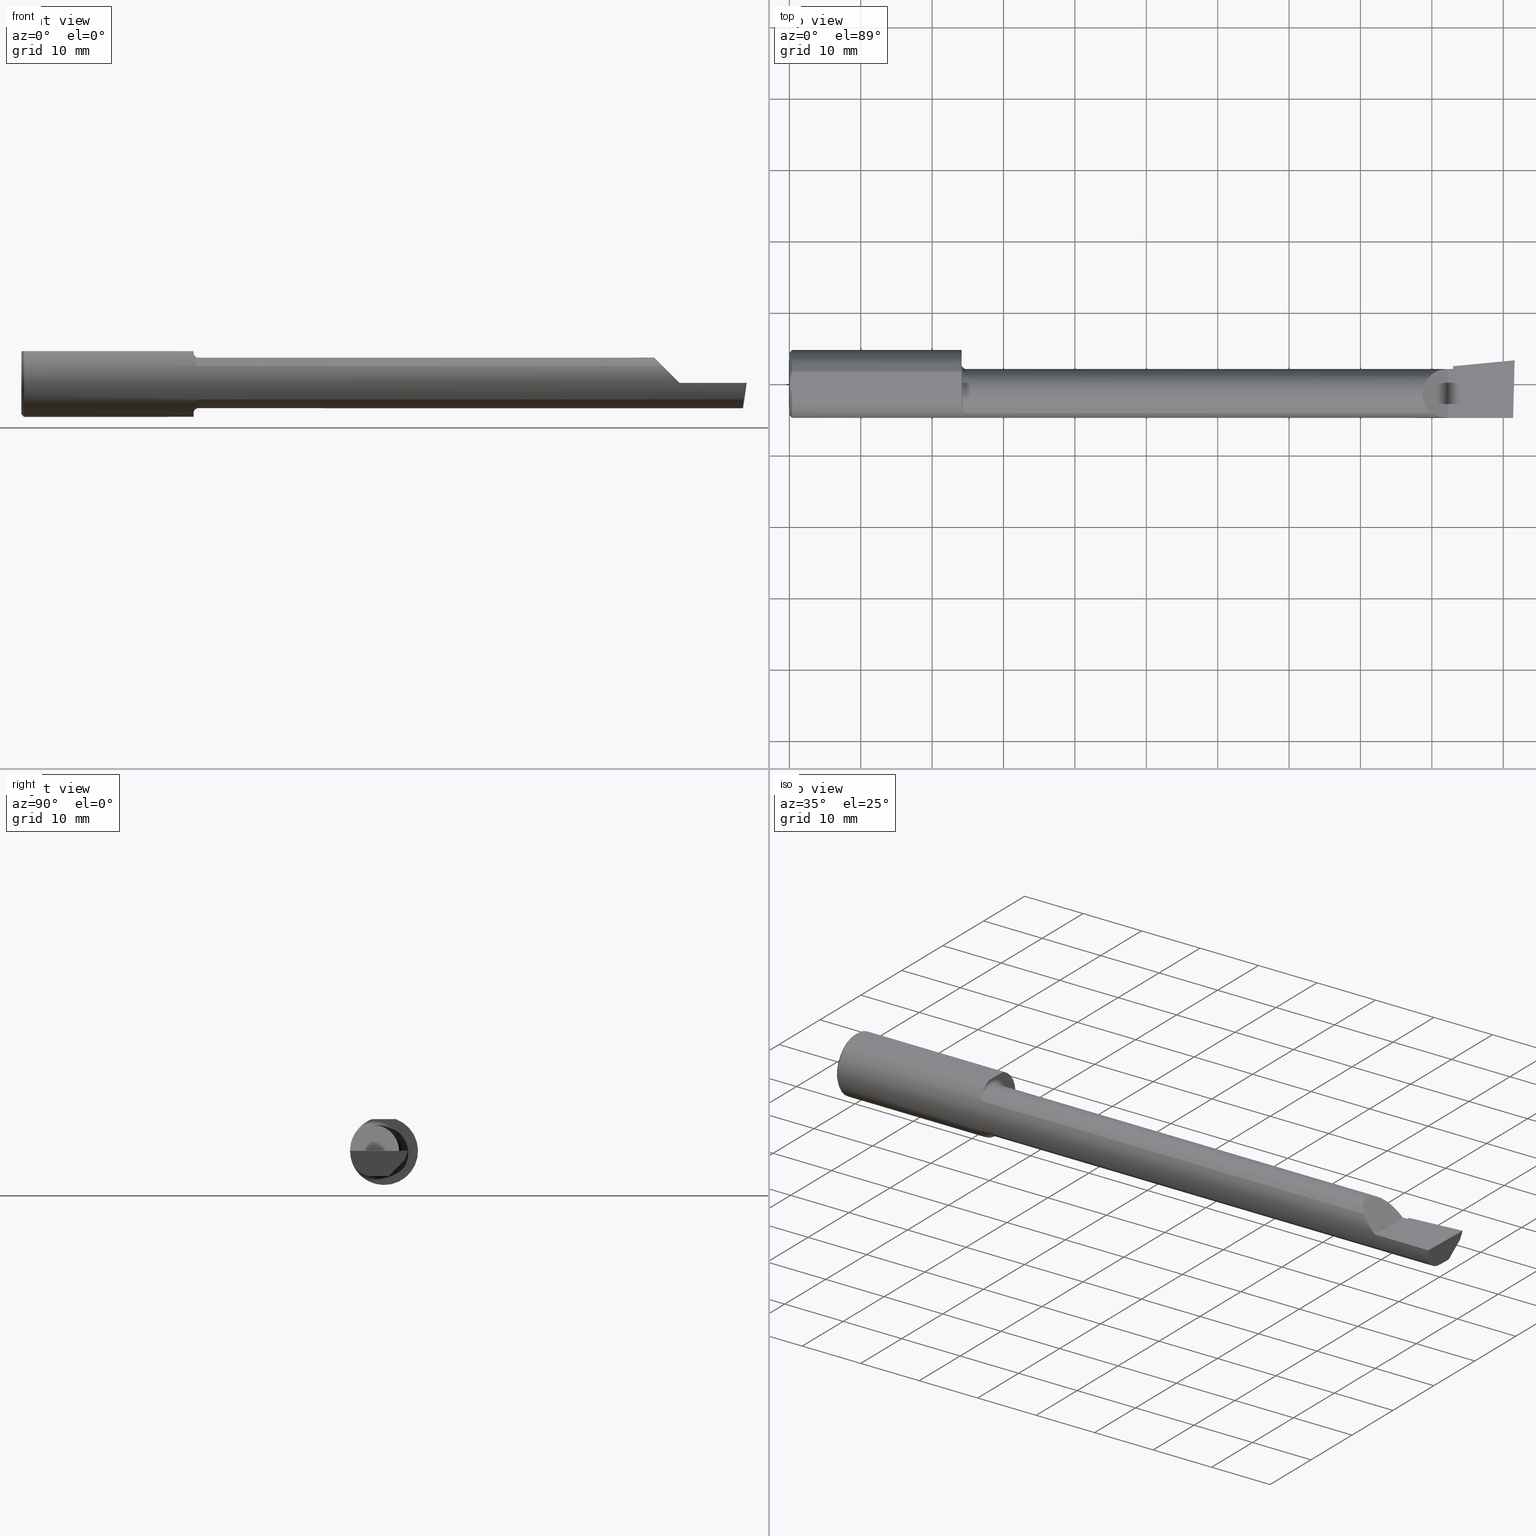
[diagram: canonical four-view strip — front | top / right | iso, engineering-drawing reading convention]
A machine part, canonical four-view strip (front | top / right | iso — engineering-drawing reading convention). The complete STEP part file that produces these views, byte-faithful:
ISO-10303-21;
HEADER;
FILE_DESCRIPTION (( 'STEP AP203' ),
    '1' );
FILE_NAME ('217504-B3203000.STEP',
    '2024-04-26T19:28:43',
    ( '' ),
    ( '' ),
    'SwSTEP 2.0',
    'SolidWorks 2022',
    '' );
FILE_SCHEMA (( 'CONFIG_CONTROL_DESIGN' ));
ENDSEC;

DATA;
#1 = ORIENTED_EDGE ( 'NONE', *, *, #617, .F. ) ;
#2 = B_SPLINE_CURVE_WITH_KNOTS ( 'NONE', 3,
 ( #511, #453, #55, #401, #458, #310 ),
 .UNSPECIFIED., .F., .F.,
 ( 4, 2, 4 ),
 ( 0.001779942938356815062, 0.002629978419973711019, 0.003480013901590607410 ),
 .UNSPECIFIED. ) ;
#3 = DIRECTION ( 'NONE',  ( -1.000000000000000000, -0.000000000000000000, -0.000000000000000000 ) ) ;
#4 = ADVANCED_FACE ( 'NONE', ( #122 ), #74, .T. ) ;
#5 = ORIENTED_EDGE ( 'NONE', *, *, #168, .F. ) ;
#6 = PRODUCT_DEFINITION_FORMATION_WITH_SPECIFIED_SOURCE ( 'ANY', '', #306, .NOT_KNOWN. ) ;
#7 = DIRECTION ( 'NONE',  ( 1.000000000000000000, 0.000000000000000000, 0.000000000000000000 ) ) ;
#8 = ORIENTED_EDGE ( 'NONE', *, *, #14, .T. ) ;
#9 = CARTESIAN_POINT ( 'NONE',  ( 3.981080296960509468, -0.1635956445993030639, -0.09130436773856169530 ) ) ;
#10 = ORIENTED_EDGE ( 'NONE', *, *, #34, .F. ) ;
#11 = PLANE ( 'NONE',  #428 ) ;
#12 = ORIENTED_EDGE ( 'NONE', *, *, #192, .T. ) ;
#13 = CARTESIAN_POINT ( 'NONE',  ( 3.597861799102314517, -0.1873500000000000165, 0.03213820089768516797 ) ) ;
#14 = EDGE_CURVE ( 'NONE', #373, #452, #393, .T. ) ;
#15 = CLOSED_SHELL ( 'NONE', ( #461, #501, #50, #24, #375, #60, #433, #207, #249, #4, #328, #286, #158, #94, #230, #419, #298 ) ) ;
#16 = DIRECTION ( 'NONE',  ( 0.06658005426110566449, -0.6914603011188223958, -0.7193398003386547446 ) ) ;
#17 = ORIENTED_EDGE ( 'NONE', *, *, #115, .F. ) ;
#18 = FACE_OUTER_BOUND ( 'NONE', #512, .T. ) ;
#19 = PERSON_AND_ORGANIZATION ( #285, #300 ) ;
#20 = VECTOR ( 'NONE', #203, 39.37007874015748143 ) ;
#21 = VERTEX_POINT ( 'NONE', #387 ) ;
#22 = LINE ( 'NONE', #565, #396 ) ;
#23 = CARTESIAN_POINT ( 'NONE',  ( 2.317499999999999893, -0.1635956445993030639, 0.09130436773856169530 ) ) ;
#24 = ADVANCED_FACE ( 'NONE', ( #90 ), #539, .F. ) ;
#25 = ORIENTED_EDGE ( 'NONE', *, *, #365, .F. ) ;
#26 = DIRECTION ( 'NONE',  ( -1.000000000000000000, -4.268512490100411279E-18, -0.000000000000000000 ) ) ;
#27 = AXIS2_PLACEMENT_3D ( 'NONE', #275, #475, #509 ) ;
#28 = CARTESIAN_POINT ( 'NONE',  ( 3.659999999999999698, -0.05739999999999999963, 0.000000000000000000 ) ) ;
#29 = CC_DESIGN_DATE_AND_TIME_ASSIGNMENT ( #35, #516, ( #302 ) ) ;
#30 = LINE ( 'NONE', #593, #166 ) ;
#31 = MECHANICAL_CONTEXT ( 'NONE', #73, 'mechanical' ) ;
#32 = DIRECTION ( 'NONE',  ( 0.000000000000000000, 1.000000000000000000, -1.438723400918613551E-16 ) ) ;
#33 = CARTESIAN_POINT ( 'NONE',  ( 3.656476415630202759, 0.01361451005324055587, -0.1207110541441177021 ) ) ;
#34 = EDGE_CURVE ( 'NONE', #452, #349, #482, .T. ) ;
#35 = DATE_AND_TIME ( #329, #600 ) ;
#36 = CARTESIAN_POINT ( 'NONE',  ( 0.9637641080978833763, -0.1573043405450777754, 0.1018329020719625500 ) ) ;
#37 = APPROVAL_PERSON_ORGANIZATION ( #380, #151, #383 ) ;
#38 = CARTESIAN_POINT ( 'NONE',  ( 4.000000000000000000, 0.2373500000000000332, 0.1753499999999999504 ) ) ;
#39 = PLANE ( 'NONE',  #605 ) ;
#40 = CARTESIAN_POINT ( 'NONE',  ( 3.659999999999999698, 0.08265000000000022329, 1.790477306702067193E-16 ) ) ;
#41 = CARTESIAN_POINT ( 'NONE',  ( 3.656639924654159657, 0.06539171466162838064, -0.06735725908305589815 ) ) ;
#42 = ORIENTED_EDGE ( 'NONE', *, *, #489, .F. ) ;
#43 = VECTOR ( 'NONE', #121, 39.37007874015748143 ) ;
#44 = CARTESIAN_POINT ( 'NONE',  ( 3.659999999999999698, 0.1149890494305081945, -0.01656765604781319789 ) ) ;
#45 = EDGE_CURVE ( 'NONE', #603, #405, #291, .T. ) ;
#46 = VERTEX_POINT ( 'NONE', #243 ) ;
#47 = ORIENTED_EDGE ( 'NONE', *, *, #449, .F. ) ;
#48 = AXIS2_PLACEMENT_3D ( 'NONE', #608, #259, #208 ) ;
#49 = VERTEX_POINT ( 'NONE', #40 ) ;
#50 = ADVANCED_FACE ( 'NONE', ( #288 ), #231, .T. ) ;
#51 = VERTEX_POINT ( 'NONE', #628 ) ;
#52 = CARTESIAN_POINT ( 'NONE',  ( 2.317499999999999893, -0.1635956445993030639, -0.09130436773856169530 ) ) ;
#53 = ORIENTED_EDGE ( 'NONE', *, *, #85, .F. ) ;
#54 = AXIS2_PLACEMENT_3D ( 'NONE', #631, #336, #234 ) ;
#55 = CARTESIAN_POINT ( 'NONE',  ( 0.008227791779583789808, -0.04447712204611815878, 0.1753499999999999781 ) ) ;
#56 = DESIGN_CONTEXT ( 'detailed design', #109, 'design' ) ;
#57 = EDGE_LOOP ( 'NONE', ( #256, #152, #125, #377 ) ) ;
#58 = DIRECTION ( 'NONE',  ( 4.268512490100411279E-18, -1.000000000000000000, 0.000000000000000000 ) ) ;
#59 = EDGE_LOOP ( 'NONE', ( #523, #251 ) ) ;
#60 = ADVANCED_FACE ( 'NONE', ( #195 ), #190, .F. ) ;
#61 = DIRECTION ( 'NONE',  ( 0.1219104985251946854, 0.000000000000000000, 0.9925410975618785825 ) ) ;
#62 =( BOUNDED_CURVE ( )  B_SPLINE_CURVE ( 3, ( #9, #205, #163, #107 ),
 .UNSPECIFIED., .F., .T. ) 
 B_SPLINE_CURVE_WITH_KNOTS ( ( 4, 4 ),
 ( 0.8516985021657665911, 1.360746882515200262 ),
 .UNSPECIFIED. ) 
 CURVE ( )  GEOMETRIC_REPRESENTATION_ITEM ( )  RATIONAL_B_SPLINE_CURVE ( ( 1.000000000000000000, 0.9785221379938657815, 0.9785221379938657815, 1.000000000000000000 ) ) 
 REPRESENTATION_ITEM ( '' )  );
#63 = LINE ( 'NONE', #465, #594 ) ;
#64 = VERTEX_POINT ( 'NONE', #441 ) ;
#65 = DIRECTION ( 'NONE',  ( 0.000000000000000000, 1.000000000000000000, 0.000000000000000000 ) ) ;
#66 = DIRECTION ( 'NONE',  ( 1.000000000000000000, 4.268512490100411279E-18, 0.000000000000000000 ) ) ;
#67 = ORIENTED_EDGE ( 'NONE', *, *, #586, .F. ) ;
#68 = CARTESIAN_POINT ( 'NONE',  ( 3.648099498941298702, 0.08140859995291799267, -0.05000000000000002359 ) ) ;
#69 = EDGE_CURVE ( 'NONE', #437, #472, #213, .T. ) ;
#70 = PERSON_AND_ORGANIZATION ( #285, #300 ) ;
#71 = EDGE_LOOP ( 'NONE', ( #352, #507, #169, #618, #53, #42 ) ) ;
#72 = FACE_OUTER_BOUND ( 'NONE', #389, .T. ) ;
#73 = APPLICATION_CONTEXT ( 'configuration controlled 3d designs of mechanical parts and assemblies' ) ;
#74 = PLANE ( 'NONE',  #27 ) ;
#75 = CARTESIAN_POINT ( 'NONE',  ( 0.000000000000000000, -0.05740000000000001351, 0.000000000000000000 ) ) ;
#76 = LENGTH_MEASURE_WITH_UNIT ( LENGTH_MEASURE( 0.02539999999999999897 ), #474 );
#77 = DIRECTION ( 'NONE',  ( -0.7071067811865507924, 0.000000000000000000, 0.7071067811865443531 ) ) ;
#78 = CARTESIAN_POINT ( 'NONE',  ( 4.000000000000000000, -0.2500000000000000555, -1.707404996040164512E-16 ) ) ;
#79 = AXIS2_PLACEMENT_3D ( 'NONE', #344, #131, #528 ) ;
#80 = VERTEX_POINT ( 'NONE', #343 ) ;
#81 = DATE_AND_TIME ( #530, #400 ) ;
#82 = CARTESIAN_POINT ( 'NONE',  ( 3.977925907309857845, -0.1365595166907235813, -0.1227499502647107499 ) ) ;
#83 = VECTOR ( 'NONE', #3, 39.37007874015748143 ) ;
#84 = CARTESIAN_POINT ( 'NONE',  ( 3.659999999999999698, -0.004807985797372722400, -0.1400500000000000633 ) ) ;
#85 = EDGE_CURVE ( 'NONE', #51, #521, #332, .T. ) ;
#86 = CARTESIAN_POINT ( 'NONE',  ( 3.629999999999999893, -0.1873499999999999888, -1.383850883036508279E-16 ) ) ;
#87 = FACE_OUTER_BOUND ( 'NONE', #504, .T. ) ;
#88 = DATE_TIME_ROLE ( 'classification_date' ) ;
#89 = LOCAL_TIME ( 12, 28, 43.00000000000000000, #93 ) ;
#90 = FACE_OUTER_BOUND ( 'NONE', #399, .T. ) ;
#91 = VECTOR ( 'NONE', #294, 39.37007874015748854 ) ;
#92 = DIRECTION ( 'NONE',  ( -1.000000000000000000, -0.000000000000000000, -0.000000000000000000 ) ) ;
#93 = COORDINATED_UNIVERSAL_TIME_OFFSET ( 8, 0, .BEHIND. ) ;
#94 = ADVANCED_FACE ( 'NONE', ( #527 ), #391, .F. ) ;
#95 = CARTESIAN_POINT ( 'NONE',  ( 0.008244775919947424855, 0.04453482769755855164, 0.1753499999999999504 ) ) ;
#96 = LINE ( 'NONE', #432, #191 ) ;
#97 = ORIENTED_EDGE ( 'NONE', *, *, #469, .T. ) ;
#98 = DATE_AND_TIME ( #588, #89 ) ;
#99 = FACE_OUTER_BOUND ( 'NONE', #57, .T. ) ;
#100 = ORIENTED_EDGE ( 'NONE', *, *, #350, .T. ) ;
#101 = VERTEX_POINT ( 'NONE', #346 ) ;
#102 = AXIS2_PLACEMENT_3D ( 'NONE', #431, #592, #145 ) ;
#103 = EDGE_CURVE ( 'NONE', #118, #564, #325, .T. ) ;
#104 = PRODUCT_DEFINITION_SHAPE ( 'NONE', 'NONE',  #302 ) ;
#105 = ORIENTED_EDGE ( 'NONE', *, *, #305, .F. ) ;
#106 = AXIS2_PLACEMENT_3D ( 'NONE', #606, #156, #252 ) ;
#107 = CARTESIAN_POINT ( 'NONE',  ( 3.991672876940992154, -0.1873499999999999888, -1.700367819150454743E-16 ) ) ;
#108 = VERTEX_POINT ( 'NONE', #183 ) ;
#109 = APPLICATION_CONTEXT ( 'configuration controlled 3d designs of mechanical parts and assemblies' ) ;
#110 = CARTESIAN_POINT ( 'NONE',  ( 1.565719721143680372E-32, -0.1873499999999999610, 1.790477306702064235E-16 ) ) ;
#111 = ORIENTED_EDGE ( 'NONE', *, *, #69, .F. ) ;
#112 = AXIS2_PLACEMENT_3D ( 'NONE', #148, #513, #176 ) ;
#113 =( BOUNDED_CURVE ( )  B_SPLINE_CURVE ( 3, ( #635, #385, #188, #585 ),
 .UNSPECIFIED., .F., .F. ) 
 B_SPLINE_CURVE_WITH_KNOTS ( ( 4, 4 ),
 ( 0.4889314207010929114, 1.042347087928814364 ),
 .UNSPECIFIED. ) 
 CURVE ( )  GEOMETRIC_REPRESENTATION_ITEM ( )  RATIONAL_B_SPLINE_CURVE ( ( 1.000000000000000000, 0.9746400248777661313, 0.9746400248777661313, 1.000000000000000000 ) ) 
 REPRESENTATION_ITEM ( '' )  );
#114 = CARTESIAN_POINT ( 'NONE',  ( 0.9499999999999999556, 0.06597272163553663527, 0.1753499999999999781 ) ) ;
#115 = EDGE_CURVE ( 'NONE', #405, #80, #485, .T. ) ;
#116 = ORIENTED_EDGE ( 'NONE', *, *, #237, .T. ) ;
#117 = CARTESIAN_POINT ( 'NONE',  ( 0.01499999999999999424, 0.000000000000000000, 0.000000000000000000 ) ) ;
#118 = VERTEX_POINT ( 'NONE', #381 ) ;
#119 = MANIFOLD_SOLID_BREP ( 'Extrude7', #15 ) ;
#120 = CARTESIAN_POINT ( 'NONE',  ( 0.9530417279495579930, -0.1311116946065058741, -0.1340922927843364310 ) ) ;
#121 = DIRECTION ( 'NONE',  ( -2.972230601656783191E-18, 0.6963153109074927682, 0.7177360153954946975 ) ) ;
#122 = FACE_OUTER_BOUND ( 'NONE', #463, .T. ) ;
#123 = CARTESIAN_POINT ( 'NONE',  ( 3.980058035321255794, 0.02601009779168078975, -0.1400500000000000911 ) ) ;
#124 = EDGE_CURVE ( 'NONE', #470, #637, #551, .T. ) ;
#125 = ORIENTED_EDGE ( 'NONE', *, *, #168, .T. ) ;
#126 = FACE_OUTER_BOUND ( 'NONE', #360, .T. ) ;
#127 = DIRECTION ( 'NONE',  ( 1.000000000000000000, 0.000000000000000000, 0.000000000000000000 ) ) ;
#128 = ORIENTED_EDGE ( 'NONE', *, *, #634, .T. ) ;
#129 = CARTESIAN_POINT ( 'NONE',  ( 3.975850273311265060, -0.1244607267090814540, -0.1422282308645910209 ) ) ;
#130 = CARTESIAN_POINT ( 'NONE',  ( 3.990039159128060398, -0.2497391662021650749, -1.698694533788567331E-16 ) ) ;
#131 = DIRECTION ( 'NONE',  ( -1.000000000000000000, -4.268512490100411279E-18, 0.000000000000000000 ) ) ;
#132 = CARTESIAN_POINT ( 'NONE',  ( 3.977873865042411250, -0.05739999999999999963, -0.1400500000000000633 ) ) ;
#133 = EDGE_CURVE ( 'NONE', #21, #101, #113, .T. ) ;
#134 = CARTESIAN_POINT ( 'NONE',  ( 0.000000000000000000, 0.000000000000000000, 0.000000000000000000 ) ) ;
#135 =( GEOMETRIC_REPRESENTATION_CONTEXT ( 3 ) GLOBAL_UNCERTAINTY_ASSIGNED_CONTEXT ( ( #263 ) ) GLOBAL_UNIT_ASSIGNED_CONTEXT ( ( #478, #182, #282 ) ) REPRESENTATION_CONTEXT ( 'NONE', 'WORKASPACE' ) );
#136 = CARTESIAN_POINT ( 'NONE',  ( 0.9499999999999999556, -0.05740000000000001351, 0.000000000000000000 ) ) ;
#137 =( BOUNDED_CURVE ( )  B_SPLINE_CURVE ( 3, ( #616, #167, #186, #525 ),
 .UNSPECIFIED., .F., .F. ) 
 B_SPLINE_CURVE_WITH_KNOTS ( ( 4, 4 ),
 ( 5.422530673488459740, 7.853981633974483678 ),
 .UNSPECIFIED. ) 
 CURVE ( )  GEOMETRIC_REPRESENTATION_ITEM ( )  RATIONAL_B_SPLINE_CURVE ( ( 1.000000000000000000, 0.5651045289226863666, 0.5651045289226863666, 1.000000000000000000 ) ) 
 REPRESENTATION_ITEM ( '' )  );
#138 = CARTESIAN_POINT ( 'NONE',  ( -5.978051742385467392E-19, 0.08264999999999995961, 1.790477306702064235E-16 ) ) ;
#139 = DIRECTION ( 'NONE',  ( 0.9953961983671800740, 0.09584575252021095004, 2.159006183157990783E-14 ) ) ;
#140 = APPROVAL_STATUS ( 'not_yet_approved' ) ;
#141 = CARTESIAN_POINT ( 'NONE',  ( 0.004115035183746292881, 0.02255629470626744487, 0.1753499999999999781 ) ) ;
#142 = DIRECTION ( 'NONE',  ( 0.000000000000000000, 0.000000000000000000, -1.000000000000000000 ) ) ;
#143 = EDGE_CURVE ( 'NONE', #164, #49, #435, .T. ) ;
#144 = SHAPE_DEFINITION_REPRESENTATION ( #104, #185 ) ;
#145 = DIRECTION ( 'NONE',  ( 0.000000000000000000, -0.2936076258024062913, -0.9559260233253795702 ) ) ;
#146 = CARTESIAN_POINT ( 'NONE',  ( 3.658254417281639803, 0.01401537333401174125, -0.1204743278970654558 ) ) ;
#147 = AXIS2_PLACEMENT_3D ( 'NONE', #117, #327, #223 ) ;
#148 = CARTESIAN_POINT ( 'NONE',  ( 0.01499999999999999424, 0.000000000000000000, 0.000000000000000000 ) ) ;
#149 = VERTEX_POINT ( 'NONE', #86 ) ;
#150 = ORIENTED_EDGE ( 'NONE', *, *, #398, .F. ) ;
#151 = APPROVAL ( #630, 'UNSPECIFIED' ) ;
#152 = ORIENTED_EDGE ( 'NONE', *, *, #200, .T. ) ;
#153 = AXIS2_PLACEMENT_3D ( 'NONE', #238, #438, #77 ) ;
#154 = LINE ( 'NONE', #52, #312 ) ;
#155 = ORIENTED_EDGE ( 'NONE', *, *, #14, .F. ) ;
#156 = DIRECTION ( 'NONE',  ( -1.000000000000000000, -0.000000000000000000, -0.000000000000000000 ) ) ;
#157 = ORIENTED_EDGE ( 'NONE', *, *, #442, .F. ) ;
#158 = ADVANCED_FACE ( 'NONE', ( #99 ), #645, .F. ) ;
#159 = LINE ( 'NONE', #266, #395 ) ;
#160 = ORIENTED_EDGE ( 'NONE', *, *, #181, .T. ) ;
#161 = CARTESIAN_POINT ( 'NONE',  ( 0.01499999999999999424, 0.000000000000000000, 0.000000000000000000 ) ) ;
#162 = AXIS2_PLACEMENT_3D ( 'NONE', #68, #510, #378 ) ;
#163 = CARTESIAN_POINT ( 'NONE',  ( 3.987725449370725261, -0.1873499999999999610, -0.03213820089768520960 ) ) ;
#164 = VERTEX_POINT ( 'NONE', #197 ) ;
#165 = CARTESIAN_POINT ( 'NONE',  ( 0.01499999999999997863, -0.06597272163553657975, 0.1753499999999999781 ) ) ;
#166 = VECTOR ( 'NONE', #229, 39.37007874015748143 ) ;
#167 = CARTESIAN_POINT ( 'NONE',  ( 3.421229036482944075, -0.06260079402492414735, 0.2087709635170538203 ) ) ;
#168 = EDGE_CURVE ( 'NONE', #637, #452, #497, .T. ) ;
#169 = ORIENTED_EDGE ( 'NONE', *, *, #255, .F. ) ;
#170 = CARTESIAN_POINT ( 'NONE',  ( 0.9519033967903075544, -0.1248165254919067768, -0.1399798634953940968 ) ) ;
#171 = APPROVAL_DATE_TIME ( #422, #379 ) ;
#172 = ORIENTED_EDGE ( 'NONE', *, *, #552, .T. ) ;
#173 = CC_DESIGN_SECURITY_CLASSIFICATION ( #569, ( #6 ) ) ;
#174 = CARTESIAN_POINT ( 'NONE',  ( 3.538695632261437130, -0.1635956445993028974, 0.09130436773856195898 ) ) ;
#175 = ORIENTED_EDGE ( 'NONE', *, *, #514, .T. ) ;
#176 = DIRECTION ( 'NONE',  ( 0.000000000000000000, 0.000000000000000000, 1.000000000000000000 ) ) ;
#177 = PERSON_AND_ORGANIZATION_ROLE ( 'creator' ) ;
#178 = AXIS2_PLACEMENT_3D ( 'NONE', #357, #7, #317 ) ;
#179 = CARTESIAN_POINT ( 'NONE',  ( 0.003000000000000218638, 2.334609556160449697E-17, 0.1753499999999999781 ) ) ;
#180 =( BOUNDED_CURVE ( )  B_SPLINE_CURVE ( 3, ( #351, #13, #610, #174 ),
 .UNSPECIFIED., .F., .F. ) 
 B_SPLINE_CURVE_WITH_KNOTS ( ( 4, 4 ),
 ( 4.712388980384689674, 5.221437360734126010 ),
 .UNSPECIFIED. ) 
 CURVE ( )  GEOMETRIC_REPRESENTATION_ITEM ( )  RATIONAL_B_SPLINE_CURVE ( ( 1.000000000000000000, 0.9785221379938656705, 0.9785221379938656705, 1.000000000000000000 ) ) 
 REPRESENTATION_ITEM ( '' )  );
#181 = EDGE_CURVE ( 'NONE', #149, #108, #180, .T. ) ;
#182 =( NAMED_UNIT ( * ) PLANE_ANGLE_UNIT ( ) SI_UNIT ( $, .RADIAN. ) );
#183 = CARTESIAN_POINT ( 'NONE',  ( 3.538695632261437130, -0.1635956445993028974, 0.09130436773856195898 ) ) ;
#184 = CARTESIAN_POINT ( 'NONE',  ( 0.9668559945294943336, -0.1603175578889975417, 0.09696363432848344177 ) ) ;
#185 = ADVANCED_BREP_SHAPE_REPRESENTATION ( '217504-B3203000', ( #119, #583 ), #135 ) ;
#186 = CARTESIAN_POINT ( 'NONE',  ( 3.475085956200449022, 0.08265000000000011227, 0.1549140437995492614 ) ) ;
#187 = PRODUCT_RELATED_PRODUCT_CATEGORY ( 'detail', '', ( #306 ) ) ;
#188 = CARTESIAN_POINT ( 'NONE',  ( 3.652489847161463743, 0.03581309036639281074, -0.1077507289917615102 ) ) ;
#189 = CARTESIAN_POINT ( 'NONE',  ( 3.652201917153907296, 0.03880335782617828216, -0.1900000000000001132 ) ) ;
#190 = PLANE ( 'NONE',  #153 ) ;
#191 = VECTOR ( 'NONE', #92, 39.37007874015748143 ) ;
#192 = EDGE_CURVE ( 'NONE', #472, #460, #347, .T. ) ;
#193 = CARTESIAN_POINT ( 'NONE',  ( 0.9500000000000002887, -0.1045012500212959133, 0.1557348687830031331 ) ) ;
#194 = PERSON_AND_ORGANIZATION ( #285, #300 ) ;
#195 = FACE_OUTER_BOUND ( 'NONE', #598, .T. ) ;
#196 = DIRECTION ( 'NONE',  ( 1.000000000000000000, 0.000000000000000000, 0.000000000000000000 ) ) ;
#197 = CARTESIAN_POINT ( 'NONE',  ( 3.629999999999999893, 0.08264999999999983471, -1.383850883036508279E-16 ) ) ;
#198 = AXIS2_PLACEMENT_3D ( 'NONE', #161, #408, #560 ) ;
#199 = ORIENTED_EDGE ( 'NONE', *, *, #356, .T. ) ;
#200 = EDGE_CURVE ( 'NONE', #308, #637, #226, .T. ) ;
#201 = ORIENTED_EDGE ( 'NONE', *, *, #350, .F. ) ;
#202 = CC_DESIGN_APPROVAL ( #151, ( #6 ) ) ;
#203 = DIRECTION ( 'NONE',  ( 1.000000000000000000, 0.000000000000000000, 0.000000000000000000 ) ) ;
#204 = ORIENTED_EDGE ( 'NONE', *, *, #337, .T. ) ;
#205 = CARTESIAN_POINT ( 'NONE',  ( 3.984117089522338340, -0.1792580844883770452, -0.06324101202936138755 ) ) ;
#206 = VERTEX_POINT ( 'NONE', #214 ) ;
#207 = ADVANCED_FACE ( 'NONE', ( #18 ), #477, .T. ) ;
#208 = DIRECTION ( 'NONE',  ( 0.000000000000000000, 0.000000000000000000, 1.000000000000000000 ) ) ;
#209 = ORIENTED_EDGE ( 'NONE', *, *, #646, .F. ) ;
#210 = CARTESIAN_POINT ( 'NONE',  ( 0.9580682074421705829, -0.1478915270140216676, -0.1153063024254916413 ) ) ;
#211 = CARTESIAN_POINT ( 'NONE',  ( 3.659999999999999698, 0.1149890494305081945, -0.01656765604781319789 ) ) ;
#212 = ORIENTED_EDGE ( 'NONE', *, *, #409, .F. ) ;
#213 = B_SPLINE_CURVE_WITH_KNOTS ( 'NONE', 3,
 ( #179, #280, #141, #95, #639, #642 ),
 .UNSPECIFIED., .F., .F.,
 ( 4, 2, 4 ),
 ( 0.003480013901590607410, 0.004330767971208083697, 0.005181522040825559984 ),
 .UNSPECIFIED. ) ;
#214 = CARTESIAN_POINT ( 'NONE',  ( 0.9499999999999999556, -0.09715400696864176511, -0.1601908905959920915 ) ) ;
#215 = EDGE_CURVE ( 'NONE', #64, #222, #529, .T. ) ;
#216 = DIRECTION ( 'NONE',  ( -1.000000000000000000, -4.268512490100411279E-18, -0.000000000000000000 ) ) ;
#217 = ORIENTED_EDGE ( 'NONE', *, *, #506, .F. ) ;
#218 = CARTESIAN_POINT ( 'NONE',  ( 0.9727799353194340748, -0.1635956445993037855, -0.09130436773856050181 ) ) ;
#219 = VECTOR ( 'NONE', #359, 39.37007874015748143 ) ;
#220 = DIRECTION ( 'NONE',  ( -0.1240019227988271994, -0.3022330132596592334, -0.9451342385281470415 ) ) ;
#221 = CC_DESIGN_PERSON_AND_ORGANIZATION_ASSIGNMENT ( #287, #595, ( #569 ) ) ;
#222 = VERTEX_POINT ( 'NONE', #625 ) ;
#223 = DIRECTION ( 'NONE',  ( 0.000000000000000000, 0.000000000000000000, -1.000000000000000000 ) ) ;
#224 = CARTESIAN_POINT ( 'NONE',  ( 0.000000000000000000, 0.000000000000000000, 0.000000000000000000 ) ) ;
#225 = ORIENTED_EDGE ( 'NONE', *, *, #255, .T. ) ;
#226 = LINE ( 'NONE', #268, #425 ) ;
#227 = AXIS2_PLACEMENT_3D ( 'NONE', #370, #363, #65 ) ;
#228 = VERTEX_POINT ( 'NONE', #165 ) ;
#229 = DIRECTION ( 'NONE',  ( 4.268512490100411279E-18, -1.000000000000000000, 1.438723400918613551E-16 ) ) ;
#230 = ADVANCED_FACE ( 'NONE', ( #72 ), #273, .F. ) ;
#231 = CYLINDRICAL_SURFACE ( 'NONE', #547, 0.1873499999999999888 ) ;
#232 = CARTESIAN_POINT ( 'NONE',  ( 0.9728009145006646374, -0.1635956445997555908, 0.09130436773775127413 ) ) ;
#233 = APPROVAL_ROLE ( '' ) ;
#234 = DIRECTION ( 'NONE',  ( 0.000000000000000000, -1.000000000000000000, 0.000000000000000000 ) ) ;
#235 = LOCAL_TIME ( 12, 28, 43.00000000000000000, #584 ) ;
#236 = PERSON_AND_ORGANIZATION_ROLE ( 'creator' ) ;
#237 = EDGE_CURVE ( 'NONE', #460, #228, #313, .T. ) ;
#238 = CARTESIAN_POINT ( 'NONE',  ( 3.629999999999999893, -0.2500000000000000555, -1.383850883036508279E-16 ) ) ;
#239 = VECTOR ( 'NONE', #66, 39.37007874015748143 ) ;
#240 = CARTESIAN_POINT ( 'NONE',  ( 0.000000000000000000, 0.000000000000000000, 0.000000000000000000 ) ) ;
#241 = ORIENTED_EDGE ( 'NONE', *, *, #237, .F. ) ;
#242 = DIMENSIONAL_EXPONENTS ( 1.000000000000000000, 0.000000000000000000, 0.000000000000000000, 0.000000000000000000, 0.000000000000000000, 0.000000000000000000, 0.000000000000000000 ) ;
#243 = CARTESIAN_POINT ( 'NONE',  ( 0.000000000000000000, 0.000000000000000000, -0.1723499999999996424 ) ) ;
#244 = CARTESIAN_POINT ( 'NONE',  ( 0.003000000000000218638, 2.334609556160449697E-17, 0.1753499999999999781 ) ) ;
#245 = CARTESIAN_POINT ( 'NONE',  ( 4.000000000000000000, -0.05739999999999999963, -0.1400500000000000633 ) ) ;
#246 = ORIENTED_EDGE ( 'NONE', *, *, #535, .T. ) ;
#247 = ORIENTED_EDGE ( 'NONE', *, *, #319, .F. ) ;
#248 = TOROIDAL_SURFACE ( 'NONE', #447, 0.1650499999999997247, 0.02500000000000000486 ) ;
#249 = ADVANCED_FACE ( 'NONE', ( #374 ), #248, .F. ) ;
#250 = SECURITY_CLASSIFICATION_LEVEL ( 'unclassified' ) ;
#251 = ORIENTED_EDGE ( 'NONE', *, *, #133, .F. ) ;
#252 = DIRECTION ( 'NONE',  ( 0.000000000000000000, 0.000000000000000000, 1.000000000000000000 ) ) ;
#253 = ORIENTED_EDGE ( 'NONE', *, *, #103, .F. ) ;
#254 = DIRECTION ( 'NONE',  ( -1.000000000000000000, -4.268512490100411279E-18, -0.000000000000000000 ) ) ;
#255 = EDGE_CURVE ( 'NONE', #80, #308, #22, .T. ) ;
#256 = ORIENTED_EDGE ( 'NONE', *, *, #596, .T. ) ;
#257 = VECTOR ( 'NONE', #533, 39.37007874015748143 ) ;
#258 = VECTOR ( 'NONE', #265, 39.37007874015748143 ) ;
#259 = DIRECTION ( 'NONE',  ( -1.000000000000000000, -0.000000000000000000, -0.000000000000000000 ) ) ;
#260 = CC_DESIGN_PERSON_AND_ORGANIZATION_ASSIGNMENT ( #622, #177, ( #302 ) ) ;
#261 = ORIENTED_EDGE ( 'NONE', *, *, #626, .T. ) ;
#262 = LINE ( 'NONE', #110, #83 ) ;
#263 = UNCERTAINTY_MEASURE_WITH_UNIT (LENGTH_MEASURE( 1.000000000000000082E-05 ), #478, 'distance_accuracy_value', 'NONE');
#264 = ORIENTED_EDGE ( 'NONE', *, *, #526, .T. ) ;
#265 = DIRECTION ( 'NONE',  ( -1.253267817926298879E-18, 0.2936076258024062913, 0.9559260233253795702 ) ) ;
#266 = CARTESIAN_POINT ( 'NONE',  ( 3.648099498941298702, 0.08140859995291799267, -0.05000000000000002359 ) ) ;
#267 = ORIENTED_EDGE ( 'NONE', *, *, #192, .F. ) ;
#268 = CARTESIAN_POINT ( 'NONE',  ( 3.977889026591898691, -0.05682100378451884065, -0.1400500000000000633 ) ) ;
#269 = ORIENTED_EDGE ( 'NONE', *, *, #45, .T. ) ;
#270 = CARTESIAN_POINT ( 'NONE',  ( 0.9749999999999999778, -0.1635956445993038966, -0.09130436773856034915 ) ) ;
#271 = LINE ( 'NONE', #274, #499 ) ;
#272 = ORIENTED_EDGE ( 'NONE', *, *, #103, .T. ) ;
#273 = PLANE ( 'NONE',  #162 ) ;
#274 = CARTESIAN_POINT ( 'NONE',  ( 3.993291301099662238, 0.1142987190042921153, -0.05113324764279836981 ) ) ;
#275 = CARTESIAN_POINT ( 'NONE',  ( 0.9499999999999999556, 0.1076499999999997320, 0.000000000000000000 ) ) ;
#276 = CARTESIAN_POINT ( 'NONE',  ( 0.9668149093790889825, -0.1602818635245164824, -0.09702252612905185036 ) ) ;
#277 = VECTOR ( 'NONE', #589, 39.37007874015748143 ) ;
#278 = LINE ( 'NONE', #418, #412 ) ;
#279 = CIRCLE ( 'NONE', #459, 0.1873499999999999888 ) ;
#280 = CARTESIAN_POINT ( 'NONE',  ( 0.003000000000000169632, 0.01127363201155560934, 0.1753499999999999781 ) ) ;
#281 = DIRECTION ( 'NONE',  ( -8.744705756855574331E-17, 0.000000000000000000, -1.000000000000000000 ) ) ;
#282 =( NAMED_UNIT ( * ) SI_UNIT ( $, .STERADIAN. ) SOLID_ANGLE_UNIT ( ) );
#283 = CARTESIAN_POINT ( 'NONE',  ( 3.648099498941298702, 0.08140859995291799267, -0.05000000000000002359 ) ) ;
#284 = CARTESIAN_POINT ( 'NONE',  ( 0.000000000000000000, 2.202527268266512578E-17, 0.1723499999999996424 ) ) ;
#285 = PERSON ( 'UNSPECIFIED', 'UNSPECIFIED', 'UNSPECIFIED', ('UNSPECIFIED'), ('UNSPECIFIED'), ('UNSPECIFIED') ) ;
#286 = ADVANCED_FACE ( 'NONE', ( #126 ), #574, .T. ) ;
#287 = PERSON_AND_ORGANIZATION ( #285, #300 ) ;
#288 = FACE_OUTER_BOUND ( 'NONE', #492, .T. ) ;
#289 = DIRECTION ( 'NONE',  ( 1.000000000000000000, 4.268512490100411279E-18, 0.000000000000000000 ) ) ;
#290 = APPROVAL_PERSON_ORGANIZATION ( #542, #555, #493 ) ;
#291 = LINE ( 'NONE', #44, #277 ) ;
#292 = CIRCLE ( 'NONE', #48, 0.1723499999999996424 ) ;
#293 = PLANE ( 'NONE',  #295 ) ;
#294 = DIRECTION ( 'NONE',  ( 0.9953961983671800740, 0.09584575252021031166, -0.000000000000000000 ) ) ;
#295 = AXIS2_PLACEMENT_3D ( 'NONE', #78, #281, #590 ) ;
#296 = DIRECTION ( 'NONE',  ( 0.9953961983671787417, 0.09584575252022461966, -8.704446866213619353E-17 ) ) ;
#297 = CARTESIAN_POINT ( 'NONE',  ( 4.000000000000000000, -0.05739999999999999963, -0.1400500000000000633 ) ) ;
#298 = ADVANCED_FACE ( 'NONE', ( #413 ), #424, .F. ) ;
#299 = ORIENTED_EDGE ( 'NONE', *, *, #124, .F. ) ;
#300 = ORGANIZATION ( 'UNSPECIFIED', 'UNSPECIFIED', '' ) ;
#301 = ORIENTED_EDGE ( 'NONE', *, *, #506, .T. ) ;
#302 = PRODUCT_DEFINITION ( 'UNKNOWN', '', #6, #56 ) ;
#303 = CIRCLE ( 'NONE', #106, 0.1723499999999996424 ) ;
#304 = ORIENTED_EDGE ( 'NONE', *, *, #181, .F. ) ;
#305 = EDGE_CURVE ( 'NONE', #405, #402, #331, .T. ) ;
#306 = PRODUCT ( '217504-B3203000', '217504-B3203000', '', ( #31 ) ) ;
#307 = FACE_OUTER_BOUND ( 'NONE', #323, .T. ) ;
#308 = VERTEX_POINT ( 'NONE', #123 ) ;
#309 = CC_DESIGN_DATE_AND_TIME_ASSIGNMENT ( #488, #88, ( #569 ) ) ;
#310 = CARTESIAN_POINT ( 'NONE',  ( 0.003000000000000218638, 2.334609556160449697E-17, 0.1753499999999999781 ) ) ;
#311 = EDGE_LOOP ( 'NONE', ( #573, #10, #155 ) ) ;
#312 = VECTOR ( 'NONE', #254, 39.37007874015748143 ) ;
#313 = CIRCLE ( 'NONE', #198, 0.1873499999999999888 ) ;
#314 = CARTESIAN_POINT ( 'NONE',  ( 0.000000000000000000, 0.06597272163553663527, 0.1753499999999999781 ) ) ;
#315 = ORIENTED_EDGE ( 'NONE', *, *, #45, .F. ) ;
#316 = DIRECTION ( 'NONE',  ( -0.1053106618240637754, -0.6976485211320200275, -0.7086580314005358483 ) ) ;
#317 = DIRECTION ( 'NONE',  ( 0.000000000000000000, 0.000000000000000000, -1.000000000000000000 ) ) ;
#318 = ORIENTED_EDGE ( 'NONE', *, *, #337, .F. ) ;
#319 = EDGE_CURVE ( 'NONE', #564, #206, #496, .T. ) ;
#320 = CARTESIAN_POINT ( 'NONE',  ( 0.9708814992308697489, -0.1628722075910997991, -0.09260290410947742690 ) ) ;
#321 = COORDINATED_UNIVERSAL_TIME_OFFSET ( 8, 0, .BEHIND. ) ;
#322 = CC_DESIGN_APPROVAL ( #379, ( #302 ) ) ;
#323 = EDGE_LOOP ( 'NONE', ( #517, #599, #550, #12, #446 ) ) ;
#324 = CARTESIAN_POINT ( 'NONE',  ( 0.9503844419023952383, -0.1115101367984845104, -0.1507946173152219793 ) ) ;
#325 = CIRCLE ( 'NONE', #54, 0.1400499999999997580 ) ;
#326 = ORIENTED_EDGE ( 'NONE', *, *, #646, .T. ) ;
#327 = DIRECTION ( 'NONE',  ( 1.000000000000000000, 0.000000000000000000, 0.000000000000000000 ) ) ;
#328 = ADVANCED_FACE ( 'NONE', ( #621 ), #572, .T. ) ;
#329 = CALENDAR_DATE ( 2024, 26, 4 ) ;
#330 = ORIENTED_EDGE ( 'NONE', *, *, #143, .F. ) ;
#331 = LINE ( 'NONE', #524, #258 ) ;
#332 = LINE ( 'NONE', #130, #538 ) ;
#333 = CARTESIAN_POINT ( 'NONE',  ( 0.9561423219567504184, -0.1426151417460937709, 0.1217894822571224528 ) ) ;
#334 = ORIENTED_EDGE ( 'NONE', *, *, #604, .F. ) ;
#335 = COORDINATED_UNIVERSAL_TIME_OFFSET ( 8, 0, .BEHIND. ) ;
#336 = DIRECTION ( 'NONE',  ( -1.000000000000000000, -4.268512490100411279E-18, -0.000000000000000000 ) ) ;
#337 = EDGE_CURVE ( 'NONE', #373, #101, #430, .T. ) ;
#338 = DIRECTION ( 'NONE',  ( -1.000000000000000000, -4.268512490100411279E-18, -0.000000000000000000 ) ) ;
#339 = CIRCLE ( 'NONE', #451, 0.1650499999999997525 ) ;
#340 = CARTESIAN_POINT ( 'NONE',  ( 3.977873865042411250, -0.05739999999999999963, -0.1400500000000000633 ) ) ;
#341 = CARTESIAN_POINT ( 'NONE',  ( 0.9503837281337299547, -0.1114837668894157890, 0.1508119329971092104 ) ) ;
#342 = CC_DESIGN_PERSON_AND_ORGANIZATION_ASSIGNMENT ( #194, #236, ( #6 ) ) ;
#343 = CARTESIAN_POINT ( 'NONE',  ( 3.993439983562941720, 0.1146611065212079367, -0.05000000000000003053 ) ) ;
#344 = CARTESIAN_POINT ( 'NONE',  ( 3.659999999999999698, 0.09791172361283663472, 0.000000000000000000 ) ) ;
#345 = ORIENTED_EDGE ( 'NONE', *, *, #85, .T. ) ;
#346 = CARTESIAN_POINT ( 'NONE',  ( 3.654666039249973686, 0.01321247140458298164, -0.1209457786867197265 ) ) ;
#347 = CIRCLE ( 'NONE', #112, 0.1873499999999999888 ) ;
#348 = CARTESIAN_POINT ( 'NONE',  ( 0.9518917549365452091, -0.1247344934163574087, 0.1400506178720495876 ) ) ;
#349 = VERTEX_POINT ( 'NONE', #84 ) ;
#350 = EDGE_CURVE ( 'NONE', #206, #554, #279, .T. ) ;
#351 = CARTESIAN_POINT ( 'NONE',  ( 3.629999999999999893, -0.1873499999999999888, -1.383850883036508279E-16 ) ) ;
#352 = ORIENTED_EDGE ( 'NONE', *, *, #124, .T. ) ;
#353 = VERTEX_POINT ( 'NONE', #284 ) ;
#354 = VECTOR ( 'NONE', #364, 39.37007874015748854 ) ;
#355 = ORIENTED_EDGE ( 'NONE', *, *, #552, .F. ) ;
#356 = EDGE_CURVE ( 'NONE', #222, #118, #597, .T. ) ;
#357 = CARTESIAN_POINT ( 'NONE',  ( 0.01499999999999999424, 0.000000000000000000, 0.000000000000000000 ) ) ;
#358 = ORIENTED_EDGE ( 'NONE', *, *, #545, .F. ) ;
#359 = DIRECTION ( 'NONE',  ( 0.7071067811865390240, 0.000000000000000000, -0.7071067811865560104 ) ) ;
#360 = EDGE_LOOP ( 'NONE', ( #299, #172, #253, #326, #440, #624, #369, #150, #609, #318, #8, #5 ) ) ;
#361 = DIRECTION ( 'NONE',  ( 0.000000000000000000, -1.000000000000000000, 0.000000000000000000 ) ) ;
#362 = DIRECTION ( 'NONE',  ( -1.000000000000000000, -4.268512490100411279E-18, -0.000000000000000000 ) ) ;
#363 = DIRECTION ( 'NONE',  ( 1.000000000000000000, 4.268512490100411279E-18, 0.000000000000000000 ) ) ;
#364 = DIRECTION ( 'NONE',  ( 0.9953961983671800740, 0.09584575252021028391, 1.093478026937438433E-17 ) ) ;
#365 = EDGE_CURVE ( 'NONE', #64, #228, #96, .T. ) ;
#366 = ORIENTED_EDGE ( 'NONE', *, *, #489, .T. ) ;
#367 = DIRECTION ( 'NONE',  ( -0.9922060308645607174, 0.02598182930461463355, 0.1218693434050595603 ) ) ;
#368 = CARTESIAN_POINT ( 'NONE',  ( 0.01499999999999999424, 0.000000000000000000, -0.1873499999999999888 ) ) ;
#369 = ORIENTED_EDGE ( 'NONE', *, *, #586, .T. ) ;
#370 = CARTESIAN_POINT ( 'NONE',  ( 0.9499999999999999556, 0.000000000000000000, 0.000000000000000000 ) ) ;
#371 = LINE ( 'NONE', #23, #239 ) ;
#372 = LOCAL_TIME ( 12, 28, 43.00000000000000000, #591 ) ;
#373 = VERTEX_POINT ( 'NONE', #643 ) ;
#374 = FACE_OUTER_BOUND ( 'NONE', #502, .T. ) ;
#375 = ADVANCED_FACE ( 'NONE', ( #388 ), #293, .F. ) ;
#376 = CARTESIAN_POINT ( 'NONE',  ( 3.629999999999999893, -0.2500000000000000555, -1.383850883036508279E-16 ) ) ;
#377 = ORIENTED_EDGE ( 'NONE', *, *, #34, .T. ) ;
#378 = DIRECTION ( 'NONE',  ( 0.000000000000000000, -0.6963153109074927682, -0.7177360153954946975 ) ) ;
#379 = APPROVAL ( #619, 'UNSPECIFIED' ) ;
#380 = PERSON_AND_ORGANIZATION ( #285, #300 ) ;
#381 = CARTESIAN_POINT ( 'NONE',  ( 0.9749999999999999778, -0.1635956445993035635, 0.09130436773856073773 ) ) ;
#382 = CARTESIAN_POINT ( 'NONE',  ( 0.9499999999999999556, -0.09715400696864176511, 0.1601908905959920915 ) ) ;
#383 = APPROVAL_ROLE ( '' ) ;
#384 = CARTESIAN_POINT ( 'NONE',  ( 0.9580729541431403096, -0.1479074971576206099, 0.1152872342625222007 ) ) ;
#385 = CARTESIAN_POINT ( 'NONE',  ( 3.650743536083989937, 0.05394922433140200008, -0.08888335082963770561 ) ) ;
#386 = CARTESIAN_POINT ( 'NONE',  ( 3.654666039249973686, 0.01321247140458298164, -0.1209457786867197265 ) ) ;
#387 = CARTESIAN_POINT ( 'NONE',  ( 3.649559965233994507, 0.06624107758111226485, -0.06577907292278796503 ) ) ;
#388 = FACE_OUTER_BOUND ( 'NONE', #415, .T. ) ;
#389 = EDGE_LOOP ( 'NONE', ( #448, #225, #541, #97, #204, #454, #546, #269 ) ) ;
#390 = CALENDAR_DATE ( 2024, 26, 4 ) ;
#391 = PLANE ( 'NONE',  #102 ) ;
#392 = CARTESIAN_POINT ( 'NONE',  ( 2.047026079080032090, -0.05740000000000000657, 4.132328855998353457E-20 ) ) ;
#393 = CIRCLE ( 'NONE', #487, 0.1400500000000002299 ) ;
#394 = DIRECTION ( 'NONE',  ( -1.000000000000000000, 5.691349986800549142E-18, -0.000000000000000000 ) ) ;
#395 = VECTOR ( 'NONE', #16, 39.37007874015748143 ) ;
#396 = VECTOR ( 'NONE', #316, 39.37007874015748854 ) ;
#397 = ORIENTED_EDGE ( 'NONE', *, *, #215, .T. ) ;
#398 = EDGE_CURVE ( 'NONE', #21, #603, #561, .T. ) ;
#399 = EDGE_LOOP ( 'NONE', ( #47, #217, #111, #457, #25 ) ) ;
#400 = LOCAL_TIME ( 12, 28, 43.00000000000000000, #335 ) ;
#401 = CARTESIAN_POINT ( 'NONE',  ( 0.004093196532652216939, -0.02240707710020816909, 0.1753499999999999504 ) ) ;
#402 = VERTEX_POINT ( 'NONE', #436 ) ;
#403 = DIRECTION ( 'NONE',  ( -1.000000000000000000, -4.268512490100411279E-18, 0.000000000000000000 ) ) ;
#404 = CONICAL_SURFACE ( 'NONE', #178, 0.1873499999999999888, 0.7853981633974602694 ) ;
#405 = VERTEX_POINT ( 'NONE', #629 ) ;
#406 = CARTESIAN_POINT ( 'NONE',  ( 0.9749999999999999778, -0.1635956445993038966, -0.09130436773856034915 ) ) ;
#407 = ORIENTED_EDGE ( 'NONE', *, *, #319, .T. ) ;
#408 = DIRECTION ( 'NONE',  ( -1.000000000000000000, -0.000000000000000000, -0.000000000000000000 ) ) ;
#409 = EDGE_CURVE ( 'NONE', #222, #206, #339, .T. ) ;
#410 = CARTESIAN_POINT ( 'NONE',  ( 3.659999999999999698, -0.05739999999999999963, 0.000000000000000000 ) ) ;
#411 = ORIENTED_EDGE ( 'NONE', *, *, #514, .F. ) ;
#412 = VECTOR ( 'NONE', #576, 39.37007874015748143 ) ;
#413 = FACE_OUTER_BOUND ( 'NONE', #71, .T. ) ;
#414 = LINE ( 'NONE', #376, #518 ) ;
#415 = EDGE_LOOP ( 'NONE', ( #607, #345, #157, #420, #330, #1 ) ) ;
#416 = VECTOR ( 'NONE', #296, 39.37007874015748143 ) ;
#417 = CARTESIAN_POINT ( 'NONE',  ( 0.9679759419021530809, -0.1612443294219086665, -0.09540922431498098655 ) ) ;
#418 = CARTESIAN_POINT ( 'NONE',  ( 3.659999999999999698, -0.2500000000000000555, -1.410085000307074674E-16 ) ) ;
#419 = ADVANCED_FACE ( 'NONE', ( #486 ), #636, .T. ) ;
#420 = ORIENTED_EDGE ( 'NONE', *, *, #634, .F. ) ;
#421 = CARTESIAN_POINT ( 'NONE',  ( 0.9499999999999999556, -0.09715400696864176511, -0.1601908905959920915 ) ) ;
#422 = DATE_AND_TIME ( #627, #235 ) ;
#423 = ORIENTED_EDGE ( 'NONE', *, *, #356, .F. ) ;
#424 = PLANE ( 'NONE',  #614 ) ;
#425 = VECTOR ( 'NONE', #522, 39.37007874015748854 ) ;
#426 = DIRECTION ( 'NONE',  ( 0.000000000000000000, 0.000000000000000000, 1.000000000000000000 ) ) ;
#427 = CARTESIAN_POINT ( 'NONE',  ( 3.659999999999999698, -0.05739999999999999963, -0.1400500000000000633 ) ) ;
#428 = AXIS2_PLACEMENT_3D ( 'NONE', #503, #403, #58 ) ;
#429 = PERSON_AND_ORGANIZATION_ROLE ( 'design_owner' ) ;
#430 =( BOUNDED_CURVE ( )  B_SPLINE_CURVE ( 3, ( #439, #146, #33, #386 ),
 .UNSPECIFIED., .F., .F. ) 
 B_SPLINE_CURVE_WITH_KNOTS ( ( 4, 4 ),
 ( 3.403716554974005160, 3.413688882750589570 ),
 .UNSPECIFIED. ) 
 CURVE ( )  GEOMETRIC_REPRESENTATION_ITEM ( )  RATIONAL_B_SPLINE_CURVE ( ( 1.000000000000000000, 0.9999917127403961103, 0.9999917127403961103, 1.000000000000000000 ) ) 
 REPRESENTATION_ITEM ( '' )  );
#431 = CARTESIAN_POINT ( 'NONE',  ( 3.646634349579652490, 0.09662475785532552430, -6.829619984160658046E-17 ) ) ;
#432 = CARTESIAN_POINT ( 'NONE',  ( 0.000000000000000000, -0.06597272163553657975, 0.1753499999999999781 ) ) ;
#433 = ADVANCED_FACE ( 'NONE', ( #87 ), #39, .F. ) ;
#434 = DIRECTION ( 'NONE',  ( -0.000000000000000000, 1.000000000000000000, -0.000000000000000000 ) ) ;
#435 = LINE ( 'NONE', #138, #257 ) ;
#436 = CARTESIAN_POINT ( 'NONE',  ( 3.659999999999999698, 0.09791172361284167236, 1.790479042428870021E-16 ) ) ;
#437 = VERTEX_POINT ( 'NONE', #244 ) ;
#438 = DIRECTION ( 'NONE',  ( -0.7071067811865443531, 0.000000000000000000, -0.7071067811865507924 ) ) ;
#439 = CARTESIAN_POINT ( 'NONE',  ( 3.659999999999999698, 0.01441505128072236540, -0.1202356058309986681 ) ) ;
#440 = ORIENTED_EDGE ( 'NONE', *, *, #604, .T. ) ;
#441 = CARTESIAN_POINT ( 'NONE',  ( 0.9499999999999999556, -0.06597272163553666302, 0.1753499999999999781 ) ) ;
#442 = EDGE_CURVE ( 'NONE', #402, #521, #443, .T. ) ;
#443 = LINE ( 'NONE', #392, #416 ) ;
#444 = APPROVAL_DATE_TIME ( #81, #151 ) ;
#445 = DIRECTION ( 'NONE',  ( -4.858719700838190352E-34, -8.537024980200823790E-17, 1.000000000000000000 ) ) ;
#446 = ORIENTED_EDGE ( 'NONE', *, *, #481, .F. ) ;
#447 = AXIS2_PLACEMENT_3D ( 'NONE', #471, #473, #464 ) ;
#448 = ORIENTED_EDGE ( 'NONE', *, *, #115, .T. ) ;
#449 = EDGE_CURVE ( 'NONE', #554, #64, #30, .T. ) ;
#450 = APPROVAL_DATE_TIME ( #98, #555 ) ;
#451 = AXIS2_PLACEMENT_3D ( 'NONE', #136, #338, #532 ) ;
#452 = VERTEX_POINT ( 'NONE', #427 ) ;
#453 = CARTESIAN_POINT ( 'NONE',  ( 0.01128414053810044941, -0.05542038647445821781, 0.1753499999999999781 ) ) ;
#454 = ORIENTED_EDGE ( 'NONE', *, *, #575, .F. ) ;
#455 = CC_DESIGN_APPROVAL ( #555, ( #569 ) ) ;
#456 = CARTESIAN_POINT ( 'NONE',  ( 0.01499999999999999424, 0.06597272163553663527, 0.1753499999999999781 ) ) ;
#457 = ORIENTED_EDGE ( 'NONE', *, *, #535, .F. ) ;
#458 = CARTESIAN_POINT ( 'NONE',  ( 0.003000000000000172667, -0.01126410975715121283, 0.1753500000000000059 ) ) ;
#459 = AXIS2_PLACEMENT_3D ( 'NONE', #632, #289, #537 ) ;
#460 = VERTEX_POINT ( 'NONE', #549 ) ;
#461 = ADVANCED_FACE ( 'NONE', ( #307 ), #404, .T. ) ;
#462 = CARTESIAN_POINT ( 'NONE',  ( 3.981080296960509468, -0.1635956445993030639, -0.09130436773856169530 ) ) ;
#463 = EDGE_LOOP ( 'NONE', ( #100, #570, #397, #548 ) ) ;
#464 = DIRECTION ( 'NONE',  ( 4.268512490100411279E-18, -1.000000000000000000, 0.000000000000000000 ) ) ;
#465 = CARTESIAN_POINT ( 'NONE',  ( 0.01499999999999999424, 2.294375778202566330E-17, 0.1873499999999999888 ) ) ;
#466 = AXIS2_PLACEMENT_3D ( 'NONE', #297, #445, #543 ) ;
#467 = EDGE_LOOP ( 'NONE', ( #315, #67, #128, #105 ) ) ;
#468 = DIRECTION ( 'NONE',  ( 4.268512490100411279E-18, -1.000000000000000000, 0.000000000000000000 ) ) ;
#469 = EDGE_CURVE ( 'NONE', #349, #373, #566, .T. ) ;
#470 = VERTEX_POINT ( 'NONE', #462 ) ;
#471 = CARTESIAN_POINT ( 'NONE',  ( 0.9749999999999999778, -0.05739999999999999963, 0.000000000000000000 ) ) ;
#472 = VERTEX_POINT ( 'NONE', #456 ) ;
#473 = DIRECTION ( 'NONE',  ( -1.000000000000000000, -4.268512490100411279E-18, -0.000000000000000000 ) ) ;
#474 =( LENGTH_UNIT ( ) NAMED_UNIT ( * ) SI_UNIT ( $, .METRE. ) );
#475 = DIRECTION ( 'NONE',  ( 1.000000000000000000, 4.268512490100411279E-18, 0.000000000000000000 ) ) ;
#476 = CARTESIAN_POINT ( 'NONE',  ( 0.9637431740823491078, -0.1572750258711015092, -0.1018777902325202628 ) ) ;
#477 = CONICAL_SURFACE ( 'NONE', #147, 0.1873499999999999888, 0.7853981633974602694 ) ;
#478 =( CONVERSION_BASED_UNIT ( 'INCH', #76 ) LENGTH_UNIT ( ) NAMED_UNIT ( #242 ) );
#479 = DIRECTION ( 'NONE',  ( 0.000000000000000000, 1.000000000000000000, 8.537024980200821325E-17 ) ) ;
#480 = CARTESIAN_POINT ( 'NONE',  ( 3.649559965233994507, 0.06624107758111226485, -0.06577907292278796503 ) ) ;
#481 = EDGE_CURVE ( 'NONE', #46, #460, #495, .T. ) ;
#482 = LINE ( 'NONE', #494, #601 ) ;
#483 = CARTESIAN_POINT ( 'NONE',  ( 0.9622046384587364942, -0.1550630761760529996, 0.1052254855377551673 ) ) ;
#484 = PERSON_AND_ORGANIZATION ( #285, #300 ) ;
#485 = LINE ( 'NONE', #283, #91 ) ;
#486 = FACE_OUTER_BOUND ( 'NONE', #59, .T. ) ;
#487 = AXIS2_PLACEMENT_3D ( 'NONE', #28, #362, #559 ) ;
#488 = DATE_AND_TIME ( #390, #372 ) ;
#489 = EDGE_CURVE ( 'NONE', #470, #51, #62, .T. ) ;
#490 = DIRECTION ( 'NONE',  ( 0.000000000000000000, -1.438723400918613551E-16, -1.000000000000000000 ) ) ;
#491 = CARTESIAN_POINT ( 'NONE',  ( 3.659999999999999698, 0.06495571228477976800, -0.06814016562413263700 ) ) ;
#492 = EDGE_LOOP ( 'NONE', ( #355, #366, #264, #160, #209, #423, #567, #498, #241, #267, #301, #201, #247 ) ) ;
#493 = APPROVAL_ROLE ( '' ) ;
#494 = CARTESIAN_POINT ( 'NONE',  ( 3.659999999999999698, -0.05739999999999999963, -0.1400500000000000633 ) ) ;
#495 = LINE ( 'NONE', #368, #219 ) ;
#496 = B_SPLINE_CURVE_WITH_KNOTS ( 'NONE', 3,
 ( #270, #218, #320, #417, #276, #476, #568, #210, #615, #120, #170, #324, #519, #421 ),
 .UNSPECIFIED., .F., .F.,
 ( 4, 2, 2, 2, 2, 2, 4 ),
 ( 1.968340875534775581E-07, 0.0001667114270246312555, 0.0003332260199617090410, 0.0006662552058358596789, 0.001332313577584163123, 0.001998371949332466459, 0.002664430321080769794 ),
 .UNSPECIFIED. ) ;
#497 = LINE ( 'NONE', #245, #623 ) ;
#498 = ORIENTED_EDGE ( 'NONE', *, *, #365, .T. ) ;
#499 = VECTOR ( 'NONE', #220, 39.37007874015748143 ) ;
#500 = ORIENTED_EDGE ( 'NONE', *, *, #305, .T. ) ;
#501 = ADVANCED_FACE ( 'NONE', ( #505 ), #11, .T. ) ;
#502 = EDGE_LOOP ( 'NONE', ( #199, #272, #407, #212 ) ) ;
#503 = CARTESIAN_POINT ( 'NONE',  ( 3.659999999999999698, 0.09791172361283663472, 0.000000000000000000 ) ) ;
#504 = EDGE_LOOP ( 'NONE', ( #175, #644 ) ) ;
#505 = FACE_OUTER_BOUND ( 'NONE', #311, .T. ) ;
#506 = EDGE_CURVE ( 'NONE', #472, #554, #508, .T. ) ;
#507 = ORIENTED_EDGE ( 'NONE', *, *, #200, .F. ) ;
#508 = LINE ( 'NONE', #314, #20 ) ;
#509 = DIRECTION ( 'NONE',  ( -4.268512490100411279E-18, 1.000000000000000000, 0.000000000000000000 ) ) ;
#510 = DIRECTION ( 'NONE',  ( 0.06894566448119619773, -0.7160281025913033393, 0.6946583704589935904 ) ) ;
#511 = CARTESIAN_POINT ( 'NONE',  ( 0.01499999999999997863, -0.06597272163553657975, 0.1753499999999999781 ) ) ;
#512 = EDGE_LOOP ( 'NONE', ( #358, #411, #648, #116, #246 ) ) ;
#513 = DIRECTION ( 'NONE',  ( -1.000000000000000000, -0.000000000000000000, -0.000000000000000000 ) ) ;
#514 = EDGE_CURVE ( 'NONE', #46, #353, #303, .T. ) ;
#515 = APPROVAL_PERSON_ORGANIZATION ( #19, #379, #233 ) ;
#516 = DATE_TIME_ROLE ( 'creation_date' ) ;
#517 = ORIENTED_EDGE ( 'NONE', *, *, #563, .F. ) ;
#518 = VECTOR ( 'NONE', #434, 39.37007874015748143 ) ;
#519 = CARTESIAN_POINT ( 'NONE',  ( 0.9499999999999998446, -0.1045082199249687122, -0.1557306416133589222 ) ) ;
#520 = DIRECTION ( 'NONE',  ( 0.000000000000000000, 0.000000000000000000, 1.000000000000000000 ) ) ;
#521 = VERTEX_POINT ( 'NONE', #553 ) ;
#522 = DIRECTION ( 'NONE',  ( -0.02617694830779360160, -0.9996573249755593693, -8.492548844487341413E-17 ) ) ;
#523 = ORIENTED_EDGE ( 'NONE', *, *, #575, .T. ) ;
#524 = CARTESIAN_POINT ( 'NONE',  ( 3.659999999999999698, 0.09791172361284120051, -1.400850220995382949E-15 ) ) ;
#525 = CARTESIAN_POINT ( 'NONE',  ( 3.629999999999999893, 0.08264999999999983471, -1.383850883036508279E-16 ) ) ;
#526 = EDGE_CURVE ( 'NONE', #51, #149, #262, .T. ) ;
#527 = FACE_OUTER_BOUND ( 'NONE', #544, .T. ) ;
#528 = DIRECTION ( 'NONE',  ( 4.268512490100411279E-18, -1.000000000000000000, 0.000000000000000000 ) ) ;
#529 = CIRCLE ( 'NONE', #227, 0.1873499999999999888 ) ;
#530 = CALENDAR_DATE ( 2024, 26, 4 ) ;
#531 = DIRECTION ( 'NONE',  ( -1.000000000000000000, -0.000000000000000000, -0.000000000000000000 ) ) ;
#532 = DIRECTION ( 'NONE',  ( 0.000000000000000000, -1.000000000000000000, 0.000000000000000000 ) ) ;
#533 = DIRECTION ( 'NONE',  ( 1.000000000000000000, 4.268512490100411279E-18, 0.000000000000000000 ) ) ;
#534 = DIRECTION ( 'NONE',  ( -0.09584575252021095004, 0.9953961983671800740, 0.000000000000000000 ) ) ;
#535 = EDGE_CURVE ( 'NONE', #228, #437, #2, .T. ) ;
#536 = DIRECTION ( 'NONE',  ( 0.02617694830779359119, 0.9996573249755593693, -2.681093642708627860E-18 ) ) ;
#537 = DIRECTION ( 'NONE',  ( 0.000000000000000000, 1.000000000000000000, 0.000000000000000000 ) ) ;
#538 = VECTOR ( 'NONE', #536, 39.37007874015748854 ) ;
#539 = PLANE ( 'NONE',  #557 ) ;
#540 = CARTESIAN_POINT ( 'NONE',  ( 0.9709038625689692115, -0.1628809688430628011, 0.09258733509388367144 ) ) ;
#541 = ORIENTED_EDGE ( 'NONE', *, *, #596, .F. ) ;
#542 = PERSON_AND_ORGANIZATION ( #285, #300 ) ;
#543 = DIRECTION ( 'NONE',  ( 0.000000000000000000, -1.000000000000000000, -8.537024980200823790E-17 ) ) ;
#544 = EDGE_LOOP ( 'NONE', ( #620, #261, #17, #500 ) ) ;
#545 = EDGE_CURVE ( 'NONE', #353, #437, #63, .T. ) ;
#546 = ORIENTED_EDGE ( 'NONE', *, *, #398, .T. ) ;
#547 = AXIS2_PLACEMENT_3D ( 'NONE', #134, #531, #426 ) ;
#548 = ORIENTED_EDGE ( 'NONE', *, *, #409, .T. ) ;
#549 = CARTESIAN_POINT ( 'NONE',  ( 0.01499999999999999424, 0.000000000000000000, -0.1873499999999999888 ) ) ;
#550 = ORIENTED_EDGE ( 'NONE', *, *, #69, .T. ) ;
#551 =( BOUNDED_CURVE ( )  B_SPLINE_CURVE ( 3, ( #581, #82, #577, #340 ),
 .UNSPECIFIED., .F., .F. ) 
 B_SPLINE_CURVE_WITH_KNOTS ( ( 4, 4 ),
 ( 5.632580117768153372, 6.493234751459281640 ),
 .UNSPECIFIED. ) 
 CURVE ( )  GEOMETRIC_REPRESENTATION_ITEM ( )  RATIONAL_B_SPLINE_CURVE ( ( 1.000000000000000000, 0.9392195014330942948, 0.9392195014330942948, 1.000000000000000000 ) ) 
 REPRESENTATION_ITEM ( '' )  );
#552 = EDGE_CURVE ( 'NONE', #470, #564, #154, .T. ) ;
#553 = CARTESIAN_POINT ( 'NONE',  ( 3.999999999999979572, 0.1306500000000239969, 8.432873275442372511E-14 ) ) ;
#554 = VERTEX_POINT ( 'NONE', #114 ) ;
#555 = APPROVAL ( #140, 'UNSPECIFIED' ) ;
#556 = LINE ( 'NONE', #611, #354 ) ;
#557 = AXIS2_PLACEMENT_3D ( 'NONE', #38, #490, #32 ) ;
#558 = CC_DESIGN_PERSON_AND_ORGANIZATION_ASSIGNMENT ( #70, #429, ( #306 ) ) ;
#559 = DIRECTION ( 'NONE',  ( 0.000000000000000000, -1.000000000000000000, 0.000000000000000000 ) ) ;
#560 = DIRECTION ( 'NONE',  ( 0.000000000000000000, 0.000000000000000000, 1.000000000000000000 ) ) ;
#561 =( BOUNDED_CURVE ( )  B_SPLINE_CURVE ( 3, ( #480, #582, #41, #491 ),
 .UNSPECIFIED., .F., .F. ) 
 B_SPLINE_CURVE_WITH_KNOTS ( ( 4, 4 ),
 ( 2.860273215522870505, 2.879468752205585513 ),
 .UNSPECIFIED. ) 
 CURVE ( )  GEOMETRIC_REPRESENTATION_ITEM ( )  RATIONAL_B_SPLINE_CURVE ( ( 1.000000000000000000, 0.9999692945166647196, 0.9999692945166647196, 1.000000000000000000 ) ) 
 REPRESENTATION_ITEM ( '' )  );
#562 = CARTESIAN_POINT ( 'NONE',  ( 3.659999999999999698, 0.06495571228477976800, -0.06814016562413263700 ) ) ;
#563 = EDGE_CURVE ( 'NONE', #353, #46, #292, .T. ) ;
#564 = VERTEX_POINT ( 'NONE', #406 ) ;
#565 = CARTESIAN_POINT ( 'NONE',  ( 3.987166985808005659, 0.07310455820032743524, -0.09221234738244871165 ) ) ;
#566 = LINE ( 'NONE', #211, #43 ) ;
#567 = ORIENTED_EDGE ( 'NONE', *, *, #215, .F. ) ;
#568 = CARTESIAN_POINT ( 'NONE',  ( 0.9621845987149125756, -0.1550322129197702625, -0.1052705638704073687 ) ) ;
#569 = SECURITY_CLASSIFICATION ( '', '', #250 ) ;
#570 = ORIENTED_EDGE ( 'NONE', *, *, #449, .T. ) ;
#571 = CIRCLE ( 'NONE', #612, 0.1400500000000002299 ) ;
#572 = PLANE ( 'NONE',  #79 ) ;
#573 = ORIENTED_EDGE ( 'NONE', *, *, #469, .F. ) ;
#574 = CYLINDRICAL_SURFACE ( 'NONE', #647, 0.1400499999999999801 ) ;
#575 = EDGE_CURVE ( 'NONE', #21, #101, #159, .T. ) ;
#576 = DIRECTION ( 'NONE',  ( -4.268512490100411279E-18, 1.000000000000000000, 3.732688574539098315E-34 ) ) ;
#577 = CARTESIAN_POINT ( 'NONE',  ( 3.976787929832031221, -0.09887019258091184204, -0.1400500000000000078 ) ) ;
#578 = CARTESIAN_POINT ( 'NONE',  ( 0.9530259122056835563, -0.1310442973014121215, 0.1341609063345036434 ) ) ;
#579 = APPLICATION_PROTOCOL_DEFINITION ( 'international standard', 'config_control_design', 1994, #109 ) ;
#580 = CC_DESIGN_PERSON_AND_ORGANIZATION_ASSIGNMENT ( #484, #638, ( #6 ) ) ;
#581 = CARTESIAN_POINT ( 'NONE',  ( 3.981080296960509468, -0.1635956445993030639, -0.09130436773856169530 ) ) ;
#582 = CARTESIAN_POINT ( 'NONE',  ( 3.653159806206771609, 0.06582018291673073784, -0.06657020401570139245 ) ) ;
#583 = AXIS2_PLACEMENT_3D ( 'NONE', #224, #520, #127 ) ;
#584 = COORDINATED_UNIVERSAL_TIME_OFFSET ( 8, 0, .BEHIND. ) ;
#585 = CARTESIAN_POINT ( 'NONE',  ( 3.654666039249973686, 0.01321247140458298164, -0.1209457786867197265 ) ) ;
#586 = EDGE_CURVE ( 'NONE', #49, #603, #571, .T. ) ;
#587 = CARTESIAN_POINT ( 'NONE',  ( 0.9749999999999999778, -0.1635956445993035635, 0.09130436773856073773 ) ) ;
#588 = CALENDAR_DATE ( 2024, 26, 4 ) ;
#589 = DIRECTION ( 'NONE',  ( -2.972230601656783191E-18, 0.6963153109074927682, 0.7177360153954946975 ) ) ;
#590 = DIRECTION ( 'NONE',  ( -1.000000000000000000, 0.000000000000000000, 8.744705756855574331E-17 ) ) ;
#591 = COORDINATED_UNIVERSAL_TIME_OFFSET ( 8, 0, .BEHIND. ) ;
#592 = DIRECTION ( 'NONE',  ( 0.09165774897393338949, -0.9519021185660613282, 0.2923717047227305521 ) ) ;
#593 = CARTESIAN_POINT ( 'NONE',  ( 0.9499999999999999556, 0.2373500000000000332, 0.1753499999999999504 ) ) ;
#594 = VECTOR ( 'NONE', #602, 39.37007874015748143 ) ;
#595 = PERSON_AND_ORGANIZATION_ROLE ( 'classification_officer' ) ;
#596 = EDGE_CURVE ( 'NONE', #349, #308, #556, .T. ) ;
#597 = B_SPLINE_CURVE_WITH_KNOTS ( 'NONE', 3,
 ( #382, #193, #341, #348, #578, #333, #384, #483, #36, #184, #640, #540, #232, #587 ),
 .UNSPECIFIED., .F., .F.,
 ( 4, 2, 2, 2, 2, 2, 4 ),
 ( 0.0002471551878304284987, 0.0008987327522055726372, 0.001550310316580716776, 0.002201887880955860806, 0.002527676663143432929, 0.002690571054237220726, 0.002853465445331008956 ),
 .UNSPECIFIED. ) ;
#598 = EDGE_LOOP ( 'NONE', ( #334, #304, #613 ) ) ;
#599 = ORIENTED_EDGE ( 'NONE', *, *, #545, .T. ) ;
#600 = LOCAL_TIME ( 12, 28, 43.00000000000000000, #321 ) ;
#601 = VECTOR ( 'NONE', #479, 39.37007874015748143 ) ;
#602 = DIRECTION ( 'NONE',  ( 0.7071067811865390240, 8.659560562355036396E-17, 0.7071067811865560104 ) ) ;
#603 = VERTEX_POINT ( 'NONE', #562 ) ;
#604 = EDGE_CURVE ( 'NONE', #108, #164, #137, .T. ) ;
#605 = AXIS2_PLACEMENT_3D ( 'NONE', #240, #196, #142 ) ;
#606 = CARTESIAN_POINT ( 'NONE',  ( 0.000000000000000000, 0.000000000000000000, 0.000000000000000000 ) ) ;
#607 = ORIENTED_EDGE ( 'NONE', *, *, #526, .F. ) ;
#608 = CARTESIAN_POINT ( 'NONE',  ( 0.000000000000000000, 0.000000000000000000, 0.000000000000000000 ) ) ;
#609 = ORIENTED_EDGE ( 'NONE', *, *, #133, .T. ) ;
#610 = CARTESIAN_POINT ( 'NONE',  ( 3.566758987970638728, -0.1792580844883770730, 0.06324101202936149857 ) ) ;
#611 = CARTESIAN_POINT ( 'NONE',  ( 3.991859106488688358, 0.02714641170210411319, -0.1400500000000000633 ) ) ;
#612 = AXIS2_PLACEMENT_3D ( 'NONE', #410, #216, #361 ) ;
#613 = ORIENTED_EDGE ( 'NONE', *, *, #617, .T. ) ;
#614 = AXIS2_PLACEMENT_3D ( 'NONE', #129, #367, #61 ) ;
#615 = CARTESIAN_POINT ( 'NONE',  ( 0.9561458414306042153, -0.1426194794824345302, -0.1217813759115460442 ) ) ;
#616 = CARTESIAN_POINT ( 'NONE',  ( 3.538695632261437130, -0.1635956445993028974, 0.09130436773856195898 ) ) ;
#617 = EDGE_CURVE ( 'NONE', #149, #164, #414, .T. ) ;
#618 = ORIENTED_EDGE ( 'NONE', *, *, #626, .F. ) ;
#619 = APPROVAL_STATUS ( 'not_yet_approved' ) ;
#620 = ORIENTED_EDGE ( 'NONE', *, *, #442, .T. ) ;
#621 = FACE_OUTER_BOUND ( 'NONE', #467, .T. ) ;
#622 = PERSON_AND_ORGANIZATION ( #285, #300 ) ;
#623 = VECTOR ( 'NONE', #394, 39.37007874015748143 ) ;
#624 = ORIENTED_EDGE ( 'NONE', *, *, #143, .T. ) ;
#625 = CARTESIAN_POINT ( 'NONE',  ( 0.9499999999999999556, -0.09715400696864176511, 0.1601908905959920915 ) ) ;
#626 = EDGE_CURVE ( 'NONE', #521, #80, #271, .T. ) ;
#627 = CALENDAR_DATE ( 2024, 26, 4 ) ;
#628 = CARTESIAN_POINT ( 'NONE',  ( 3.991672876940992154, -0.1873499999999999888, -1.700367819150454743E-16 ) ) ;
#629 = CARTESIAN_POINT ( 'NONE',  ( 3.659999999999999698, 0.08255448787293397095, -0.05000000000000003053 ) ) ;
#630 = APPROVAL_STATUS ( 'not_yet_approved' ) ;
#631 = CARTESIAN_POINT ( 'NONE',  ( 0.9749999999999999778, -0.05740000000000001351, 0.000000000000000000 ) ) ;
#632 = CARTESIAN_POINT ( 'NONE',  ( 0.9499999999999999556, 0.000000000000000000, 0.000000000000000000 ) ) ;
#633 = APPLICATION_PROTOCOL_DEFINITION ( 'international standard', 'config_control_design', 1994, #73 ) ;
#634 = EDGE_CURVE ( 'NONE', #49, #402, #278, .T. ) ;
#635 = CARTESIAN_POINT ( 'NONE',  ( 3.649559965233994507, 0.06624107758111226485, -0.06577907292278796503 ) ) ;
#636 = PLANE ( 'NONE',  #641 ) ;
#637 = VERTEX_POINT ( 'NONE', #132 ) ;
#638 = PERSON_AND_ORGANIZATION_ROLE ( 'design_supplier' ) ;
#639 = CARTESIAN_POINT ( 'NONE',  ( 0.01125230581755086272, 0.05532998191409922023, 0.1753500000000000059 ) ) ;
#640 = CARTESIAN_POINT ( 'NONE',  ( 0.9680018598681173758, -0.1612625562479377272, 0.09537826053888064093 ) ) ;
#641 = AXIS2_PLACEMENT_3D ( 'NONE', #189, #139, #534 ) ;
#642 = CARTESIAN_POINT ( 'NONE',  ( 0.01499999999999999424, 0.06597272163553663527, 0.1753499999999999781 ) ) ;
#643 = CARTESIAN_POINT ( 'NONE',  ( 3.659999999999999698, 0.01441505128072236540, -0.1202356058309986681 ) ) ;
#644 = ORIENTED_EDGE ( 'NONE', *, *, #563, .T. ) ;
#645 = PLANE ( 'NONE',  #466 ) ;
#646 = EDGE_CURVE ( 'NONE', #118, #108, #371, .T. ) ;
#647 = AXIS2_PLACEMENT_3D ( 'NONE', #75, #26, #468 ) ;
#648 = ORIENTED_EDGE ( 'NONE', *, *, #481, .T. ) ;
ENDSEC;
END-ISO-10303-21;
